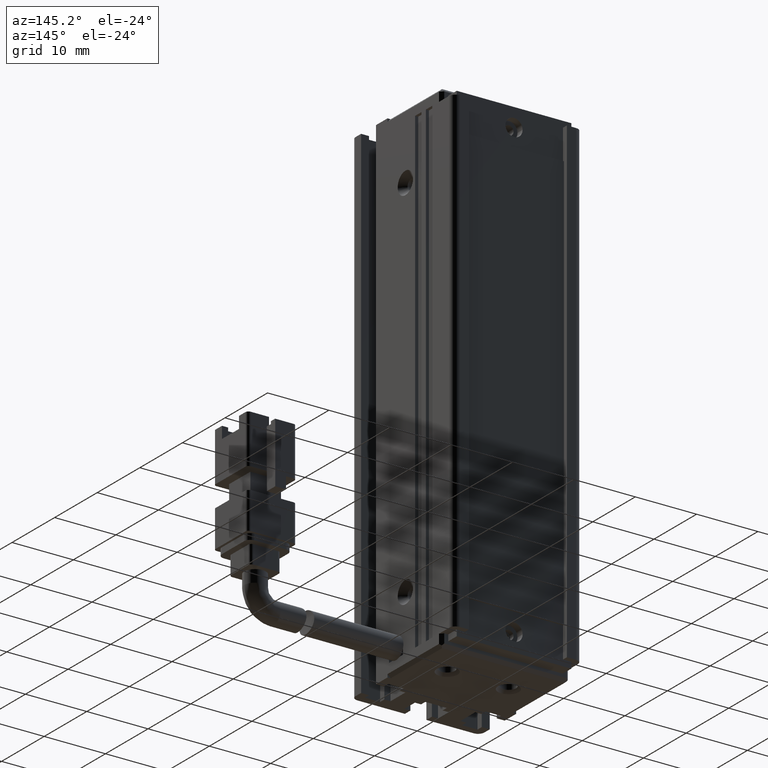
[diagram: clean part render]
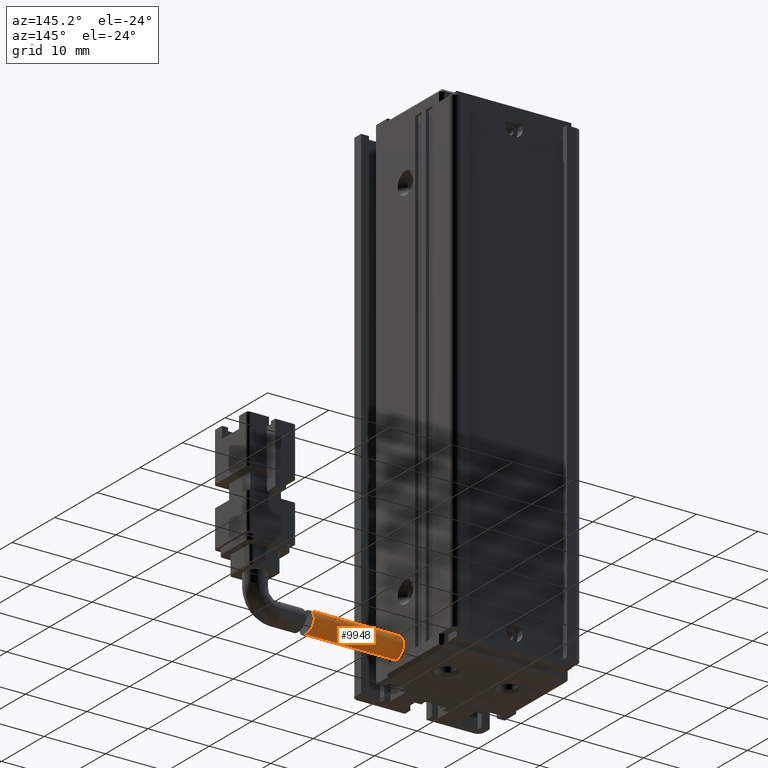
[diagram: same view with one face highlighted and labeled with its STEP entity id]
A machine part, auxiliary view. The second image highlights one B-rep face of the part: STEP entity #9948.
In plain terms, the highlighted cylindrical surface (edge-blend (fillet) strip) has radius 1.75 mm, axis along (-1, -0, -0).
Its self-contained STEP definition (entity closure, byte-faithful):
#352 = CARTESIAN_POINT ( 'NONE',  ( 66.13743220877901800, 22.56061969415861100, -153.8395406144934200 ) ) ;
#751 = CIRCLE ( 'NONE', #1066, 1.750000000000001600 ) ;
#951 = EDGE_LOOP ( 'NONE', ( #24094, #19418, #3826, #8612 ) ) ;
#1066 = AXIS2_PLACEMENT_3D ( 'NONE', #16487, #3062, #28225 ) ;
#1234 = CARTESIAN_POINT ( 'NONE',  ( 66.10664507071450700, 22.36783389789093900, -150.9313779437375700 ) ) ;
#2674 = DIRECTION ( 'NONE',  ( -1.000000000000000000, -3.304235192336769600E-015, -6.906522657569287600E-032 ) ) ;
#2757 = CARTESIAN_POINT ( 'NONE',  ( 66.06343873949749900, 22.64709544356479000, -151.1315777397997200 ) ) ;
#3062 = DIRECTION ( 'NONE',  ( 1.000000000000000000, 3.304235192336769600E-015, 6.906522657569287600E-032 ) ) ;
#3379 = CARTESIAN_POINT ( 'NONE',  ( 66.16909918599570500, 21.60680859003608500, -150.6999999999999600 ) ) ;
#3826 = ORIENTED_EDGE ( 'NONE', *, *, #23468, .T. ) ;
#4261 = EDGE_CURVE ( 'NONE', #14222, #13657, #25291, .T. ) ;
#4938 = CARTESIAN_POINT ( 'NONE',  ( 51.42537974683536100, 21.49073232304851500, -150.6999999999999600 ) ) ;
#4971 = CARTESIAN_POINT ( 'NONE',  ( 66.00678294115665800, 23.18463344848185800, -152.9041675512315500 ) ) ;
#4986 = CARTESIAN_POINT ( 'NONE',  ( 66.20621967933266200, 21.49073232304856500, -154.2000000000000200 ) ) ;
#5070 = CARTESIAN_POINT ( 'NONE',  ( 65.99693793915957900, 23.01894157653052300, -151.5672986979645600 ) ) ;
#5164 = CARTESIAN_POINT ( 'NONE',  ( 66.01781632386867200, 23.15157741340438600, -153.0132809039903900 ) ) ;
#5596 = CARTESIAN_POINT ( 'NONE',  ( 51.42537974683536100, 21.49073232304854000, -154.1999999999999900 ) ) ;
#5965 = CARTESIAN_POINT ( 'NONE',  ( 66.12003836585690000, 22.26761315901734400, -150.8777216974355900 ) ) ;
#6115 = CARTESIAN_POINT ( 'NONE',  ( 66.14312513808749800, 22.05618387698946500, -150.7899194494976900 ) ) ;
#6134 = LINE ( 'NONE', #27373, #29216 ) ;
#6723 = FACE_OUTER_BOUND ( 'NONE', #951, .T. ) ;
#6993 = VECTOR ( 'NONE', #2674, 1000.000000000000000 ) ;
#7475 = CARTESIAN_POINT ( 'NONE',  ( 66.02159805663029600, 22.88828370669178000, -151.3725020553220300 ) ) ;
#8612 = ORIENTED_EDGE ( 'NONE', *, *, #24450, .F. ) ;
#9298 = EDGE_CURVE ( 'NONE', #13657, #13267, #6134, .T. ) ;
#9517 = CARTESIAN_POINT ( 'NONE',  ( 65.97024437261937600, 23.19420936625597900, -151.9887505292054800 ) ) ;
#9636 = CARTESIAN_POINT ( 'NONE',  ( 71.42537974683536100, 21.49073232304858300, -150.6999999999999600 ) ) ;
#9723 = CARTESIAN_POINT ( 'NONE',  ( 66.12463420223001300, 22.64847476324763100, -153.7673024940897300 ) ) ;
#9818 = CARTESIAN_POINT ( 'NONE',  ( 66.19668055208005300, 21.95177912622207500, -154.1536289975071600 ) ) ;
#9948 = ADVANCED_FACE ( 'NONE', ( #6723 ), #12078, .T. ) ;
#10351 = CARTESIAN_POINT ( 'NONE',  ( 66.16909918599567700, 21.49073232304856500, -150.6999999999999600 ) ) ;
#12078 = CYLINDRICAL_SURFACE ( 'NONE', #15064, 1.750000000000001600 ) ;
#12331 = LINE ( 'NONE', #9636, #6993 ) ;
#13267 = VERTEX_POINT ( 'NONE', #5596 ) ;
#13657 = VERTEX_POINT ( 'NONE', #4986 ) ;
#14025 = CARTESIAN_POINT ( 'NONE',  ( 66.15272929082431100, 21.94491196028727100, -150.7561066842592700 ) ) ;
#14222 = VERTEX_POINT ( 'NONE', #25337 ) ;
#14237 = CARTESIAN_POINT ( 'NONE',  ( 66.16564187166544300, 21.72081579437509200, -150.7114329739076500 ) ) ;
#14428 = CARTESIAN_POINT ( 'NONE',  ( 65.98134991565427800, 23.24078982580401800, -152.5637194744110400 ) ) ;
#15064 = AXIS2_PLACEMENT_3D ( 'NONE', #26100, #23769, #25889 ) ;
#16487 = CARTESIAN_POINT ( 'NONE',  ( 51.42537974683536100, 21.49073232304851500, -152.4499999999999900 ) ) ;
#16812 = CARTESIAN_POINT ( 'NONE',  ( 66.20621967933266200, 21.49073232304856500, -154.2000000000000200 ) ) ;
#18191 = DIRECTION ( 'NONE',  ( -1.000000000000000000, -3.304235192336769600E-015, -6.906522657569287600E-032 ) ) ;
#19418 = ORIENTED_EDGE ( 'NONE', *, *, #9298, .T. ) ;
#20911 = CARTESIAN_POINT ( 'NONE',  ( 66.05492445293649000, 23.01977546981315500, -153.3316429091015600 ) ) ;
#21005 = CARTESIAN_POINT ( 'NONE',  ( 66.17113496622533800, 22.26883414955935700, -154.0216747521504600 ) ) ;
#23429 = CARTESIAN_POINT ( 'NONE',  ( 66.20621967933269000, 21.72282869244825300, -154.1999999999999900 ) ) ;
#23468 = EDGE_CURVE ( 'NONE', #13267, #25906, #751, .T. ) ;
#23537 = CARTESIAN_POINT ( 'NONE',  ( 65.98855349268929200, 23.22932324687324300, -152.6799364845565200 ) ) ;
#23769 = DIRECTION ( 'NONE',  ( -1.000000000000000000, -3.304235192336769600E-015, -6.906522657569287600E-032 ) ) ;
#24094 = ORIENTED_EDGE ( 'NONE', *, *, #4261, .T. ) ;
#24450 = EDGE_CURVE ( 'NONE', #14222, #25906, #12331, .T. ) ;
#25291 = B_SPLINE_CURVE_WITH_KNOTS ( 'NONE', 3,
 ( #10351, #3379, #14237, #14025, #6115, #5965, #1234, #25346, #2757, #7475, #5070, #9517, #27924, #14428, #23537, #4971, #5164, #20911, #28338, #9723, #352, #28022, #21005, #9818, #23429, #16812 ),
 .UNSPECIFIED., .F., .F.,
 ( 4, 2, 2, 2, 2, 2, 2, 2, 2, 2, 2, 2, 4 ),
 ( 0.005490571999675019500, 0.005833718808239143000, 0.006176865616803265700, 0.006520012425367389300, 0.006863159233931511900, 0.007549452851059712200, 0.008235746468187912400, 0.008578893276751970900, 0.008922040085316027700, 0.009608333702444148100, 0.009951480511008208400, 0.01029462731957226900, 0.01098092093670036800 ),
 .UNSPECIFIED. ) ;
#25337 = CARTESIAN_POINT ( 'NONE',  ( 66.16909918599567700, 21.49073232304856500, -150.6999999999999600 ) ) ;
#25346 = CARTESIAN_POINT ( 'NONE',  ( 66.07835221810199800, 22.55760743916209400, -151.0581316121932800 ) ) ;
#25889 = DIRECTION ( 'NONE',  ( 0.0000000000000000000, 0.0000000000000000000, 1.000000000000000000 ) ) ;
#25906 = VERTEX_POINT ( 'NONE', #4938 ) ;
#26100 = CARTESIAN_POINT ( 'NONE',  ( 71.42537974683536100, 21.49073232304858300, -152.4499999999999900 ) ) ;
#27373 = CARTESIAN_POINT ( 'NONE',  ( 71.42537974683536100, 21.49073232304858300, -154.1999999999999900 ) ) ;
#27924 = CARTESIAN_POINT ( 'NONE',  ( 65.96799919059765200, 23.24061665153339700, -152.2199166147516700 ) ) ;
#28022 = CARTESIAN_POINT ( 'NONE',  ( 66.16064130294128600, 22.37141064514804300, -153.9665380968415300 ) ) ;
#28225 = DIRECTION ( 'NONE',  ( 0.0000000000000000000, 0.0000000000000000000, 1.000000000000000000 ) ) ;
#28338 = CARTESIAN_POINT ( 'NONE',  ( 66.08400798320376200, 22.89150646391433600, -153.5237529889948600 ) ) ;
#29216 = VECTOR ( 'NONE', #18191, 1000.000000000000000 ) ;